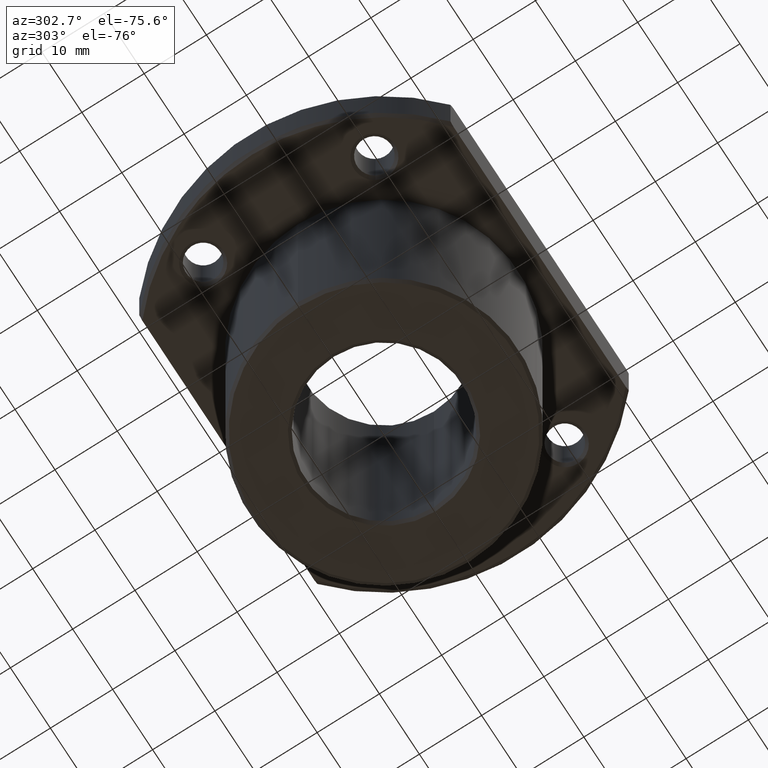
[diagram: clean part render]
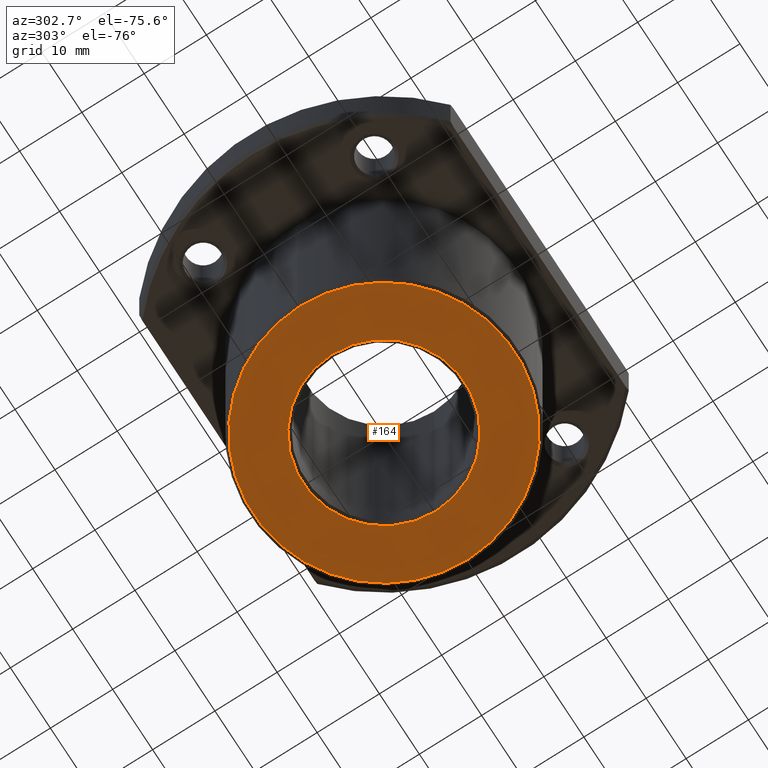
[diagram: same view with one face highlighted and labeled with its STEP entity id]
A machine part, auxiliary view. The second image highlights one B-rep face of the part: STEP entity #164.
In plain terms, the highlighted planar face has unit normal (0, 0, 1).
Its self-contained STEP definition (entity closure, byte-faithful):
#103=AXIS2_PLACEMENT_3D('Circle Axis2P3D',#101,#102,$) ;
#127=AXIS2_PLACEMENT_3D('Circle Axis2P3D',#125,#126,$) ;
#140=AXIS2_PLACEMENT_3D('Plane Axis2P3D',#137,#138,#139) ;
#148=AXIS2_PLACEMENT_3D('Circle Axis2P3D',#146,#147,$) ;
#157=AXIS2_PLACEMENT_3D('Circle Axis2P3D',#155,#156,$) ;
#98=CARTESIAN_POINT('Vertex',(21.,-4.68313674515E-015,0.)) ;
#101=CARTESIAN_POINT('Axis2P3D Location',(-8.881784197E-016,-7.1054273576E-015,1.10134124043E-013)) ;
#105=CARTESIAN_POINT('Vertex',(-21.,7.48480322961E-007,0.)) ;
#125=CARTESIAN_POINT('Axis2P3D Location',(-3.77475828373E-015,-1.06581410364E-014,3.5527136788E-014)) ;
#137=CARTESIAN_POINT('Axis2P3D Location',(0.,0.,0.)) ;
#146=CARTESIAN_POINT('Axis2P3D Location',(0.,1.55431223448E-015,0.)) ;
#150=CARTESIAN_POINT('Vertex',(-13.,1.17280859284E-007,0.)) ;
#152=CARTESIAN_POINT('Vertex',(13.,9.91665517064E-015,0.)) ;
#155=CARTESIAN_POINT('Axis2P3D Location',(3.5527136788E-015,1.11022302463E-015,0.)) ;
#102=DIRECTION('Axis2P3D Direction',(-1.60918613105E-030,7.1054273576E-015,1.)) ;
#126=DIRECTION('Axis2P3D Direction',(2.85858502489E-015,2.82221293511E-014,1.)) ;
#138=DIRECTION('Axis2P3D Direction',(0.,0.,1.)) ;
#139=DIRECTION('Axis2P3D XDirection',(1.,0.,0.)) ;
#147=DIRECTION('Axis2P3D Direction',(0.,0.,1.)) ;
#156=DIRECTION('Axis2P3D Direction',(0.,0.,1.)) ;
#143=ORIENTED_EDGE('',*,*,#129,.F.) ;
#144=ORIENTED_EDGE('',*,*,#107,.F.) ;
#161=ORIENTED_EDGE('',*,*,#154,.T.) ;
#162=ORIENTED_EDGE('',*,*,#159,.T.) ;
#163=FACE_BOUND('',#160,.T.) ;
#164=ADVANCED_FACE('',(#145,#163),#141,.F.) ;
#104=CIRCLE('generated circle',#103,21.) ;
#128=CIRCLE('generated circle',#127,21.) ;
#149=CIRCLE('generated circle',#148,13.) ;
#158=CIRCLE('generated circle',#157,13.) ;
#107=EDGE_CURVE('',#99,#106,#104,.T.) ;
#129=EDGE_CURVE('',#106,#99,#128,.T.) ;
#154=EDGE_CURVE('',#151,#153,#149,.T.) ;
#159=EDGE_CURVE('',#153,#151,#158,.T.) ;
#142=EDGE_LOOP('',(#143,#144)) ;
#160=EDGE_LOOP('',(#161,#162)) ;
#145=FACE_OUTER_BOUND('',#142,.T.) ;
#141=PLANE('Plane',#140) ;
#99=VERTEX_POINT('',#98) ;
#106=VERTEX_POINT('',#105) ;
#151=VERTEX_POINT('',#150) ;
#153=VERTEX_POINT('',#152) ;